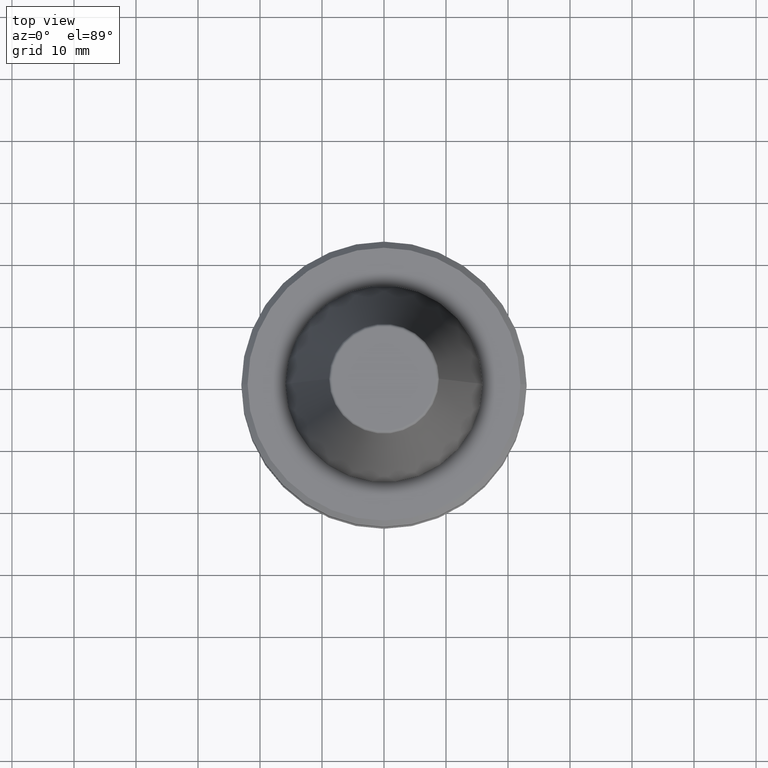
[diagram: clean part render]
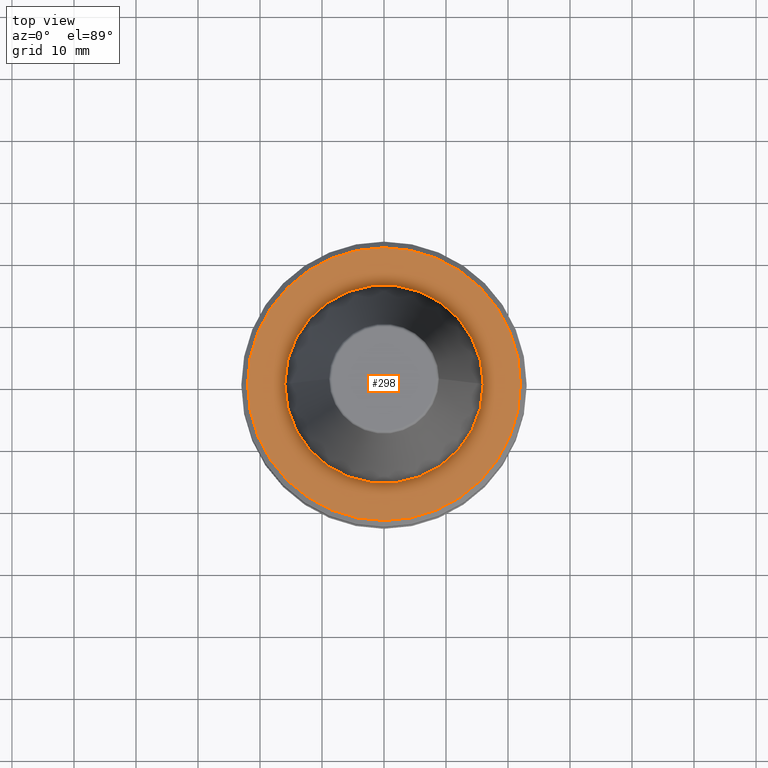
[diagram: same view with one face highlighted and labeled with its STEP entity id]
A machine part, top view. The second image highlights one B-rep face of the part: STEP entity #298.
In plain terms, the highlighted planar face has unit normal (0, 0, -1).
Its self-contained STEP definition (entity closure, byte-faithful):
#7 = CARTESIAN_POINT ( 'NONE',  ( 0.0000000000000000000, 0.0000000000000000000, -2.000000000000001800 ) ) ;
#28 = CARTESIAN_POINT ( 'NONE',  ( 0.0000000000000000000, 0.0000000000000000000, -2.000000000000001800 ) ) ;
#30 = CIRCLE ( 'NONE', #450, 21.99999999999990800 ) ;
#42 = CARTESIAN_POINT ( 'NONE',  ( 0.0000000000000000000, 0.0000000000000000000, -2.000000000000001800 ) ) ;
#62 = ORIENTED_EDGE ( 'NONE', *, *, #86, .F. ) ;
#65 = VERTEX_POINT ( 'NONE', #640 ) ;
#86 = EDGE_CURVE ( 'NONE', #741, #488, #129, .T. ) ;
#113 = DIRECTION ( 'NONE',  ( -0.0000000000000000000, -0.0000000000000000000, 1.000000000000000000 ) ) ;
#129 = CIRCLE ( 'NONE', #510, 16.00000000000034800 ) ;
#136 = CIRCLE ( 'NONE', #487, 21.99999999999990800 ) ;
#229 = DIRECTION ( 'NONE',  ( 0.0000000000000000000, 0.0000000000000000000, -1.000000000000000000 ) ) ;
#298 = ADVANCED_FACE ( 'NONE', ( #627, #651 ), #567, .F. ) ;
#320 = EDGE_LOOP ( 'NONE', ( #62, #896 ) ) ;
#410 = ORIENTED_EDGE ( 'NONE', *, *, #927, .T. ) ;
#447 = CIRCLE ( 'NONE', #944, 16.00000000000034800 ) ;
#450 = AXIS2_PLACEMENT_3D ( 'NONE', #42, #113, #953 ) ;
#457 = DIRECTION ( 'NONE',  ( -1.000000000000000000, 0.0000000000000000000, -0.0000000000000000000 ) ) ;
#477 = CARTESIAN_POINT ( 'NONE',  ( -21.99999999999990800, 0.0000000000000000000, -2.000000000000001800 ) ) ;
#487 = AXIS2_PLACEMENT_3D ( 'NONE', #7, #830, #894 ) ;
#488 = VERTEX_POINT ( 'NONE', #699 ) ;
#510 = AXIS2_PLACEMENT_3D ( 'NONE', #547, #658, #859 ) ;
#515 = CARTESIAN_POINT ( 'NONE',  ( 16.00000000000045800, 0.0000000000000000000, -2.000000000000085300 ) ) ;
#535 = EDGE_CURVE ( 'NONE', #65, #879, #136, .T. ) ;
#547 = CARTESIAN_POINT ( 'NONE',  ( 0.0000000000000000000, 0.0000000000000000000, -2.000000000000001800 ) ) ;
#567 = PLANE ( 'NONE',  #794 ) ;
#627 = FACE_BOUND ( 'NONE', #320, .T. ) ;
#640 = CARTESIAN_POINT ( 'NONE',  ( 21.99999999999990800, 2.755455298081533300E-015, -2.000000000000001800 ) ) ;
#651 = FACE_OUTER_BOUND ( 'NONE', #700, .T. ) ;
#658 = DIRECTION ( 'NONE',  ( -0.0000000000000000000, -0.0000000000000000000, 1.000000000000000000 ) ) ;
#693 = CARTESIAN_POINT ( 'NONE',  ( 0.0000000000000000000, 21.99999999999990800, -2.000000000000001800 ) ) ;
#699 = CARTESIAN_POINT ( 'NONE',  ( -16.00000000000045800, 1.959434878635821100E-015, -2.000000000000085300 ) ) ;
#700 = EDGE_LOOP ( 'NONE', ( #410, #810 ) ) ;
#719 = DIRECTION ( 'NONE',  ( 1.000000000000000000, 0.0000000000000000000, 0.0000000000000000000 ) ) ;
#741 = VERTEX_POINT ( 'NONE', #515 ) ;
#794 = AXIS2_PLACEMENT_3D ( 'NONE', #693, #229, #457 ) ;
#810 = ORIENTED_EDGE ( 'NONE', *, *, #535, .T. ) ;
#830 = DIRECTION ( 'NONE',  ( -0.0000000000000000000, -0.0000000000000000000, 1.000000000000000000 ) ) ;
#859 = DIRECTION ( 'NONE',  ( 1.000000000000000000, 0.0000000000000000000, 0.0000000000000000000 ) ) ;
#877 = DIRECTION ( 'NONE',  ( -0.0000000000000000000, -0.0000000000000000000, 1.000000000000000000 ) ) ;
#879 = VERTEX_POINT ( 'NONE', #477 ) ;
#894 = DIRECTION ( 'NONE',  ( 1.000000000000000000, 0.0000000000000000000, 0.0000000000000000000 ) ) ;
#896 = ORIENTED_EDGE ( 'NONE', *, *, #971, .F. ) ;
#927 = EDGE_CURVE ( 'NONE', #879, #65, #30, .T. ) ;
#944 = AXIS2_PLACEMENT_3D ( 'NONE', #28, #877, #719 ) ;
#953 = DIRECTION ( 'NONE',  ( 1.000000000000000000, 0.0000000000000000000, 0.0000000000000000000 ) ) ;
#971 = EDGE_CURVE ( 'NONE', #488, #741, #447, .T. ) ;